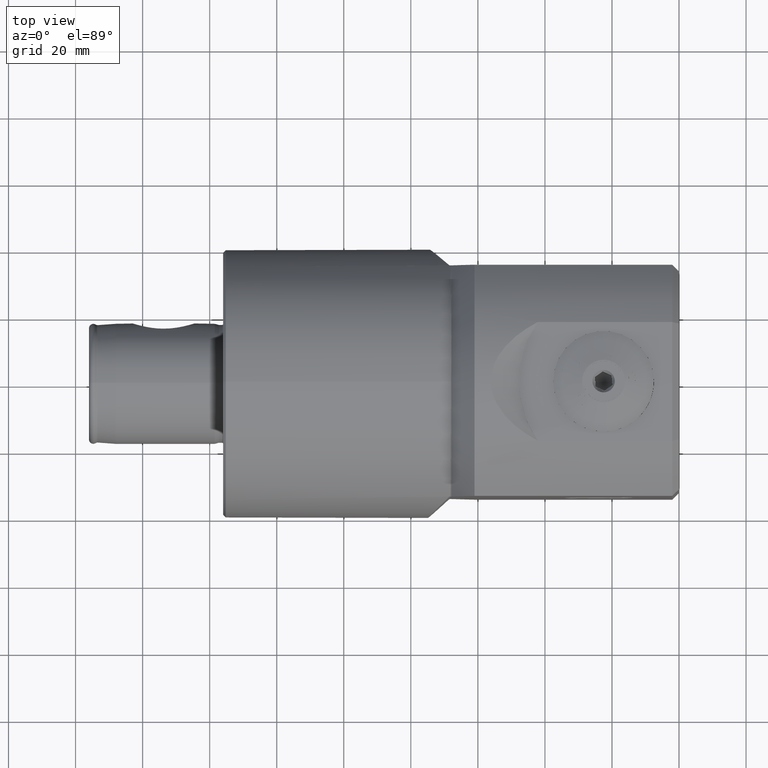
[diagram: clean part render]
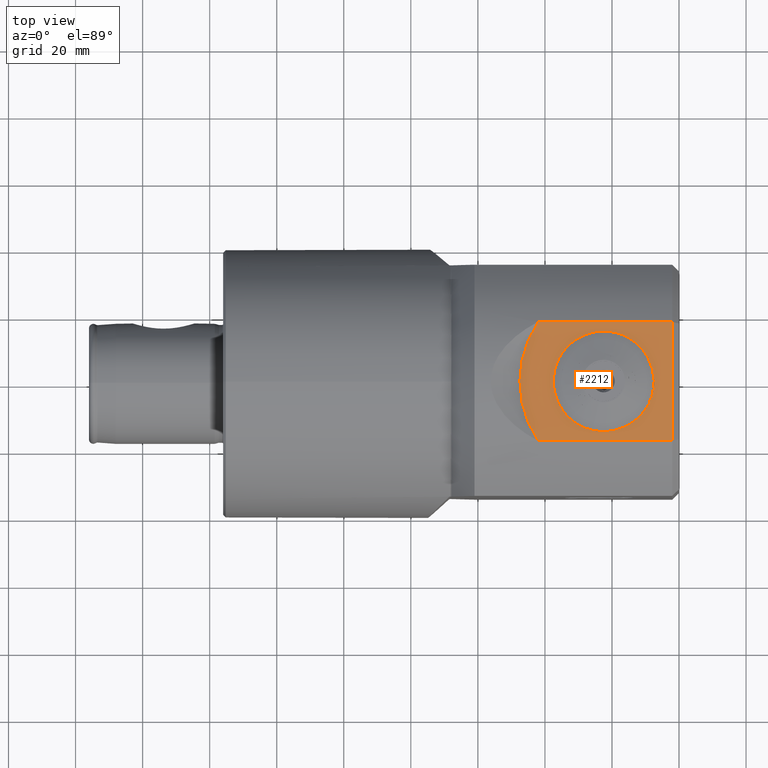
[diagram: same view with one face highlighted and labeled with its STEP entity id]
A machine part, top view. The second image highlights one B-rep face of the part: STEP entity #2212.
In plain terms, the highlighted planar face has unit normal (0, 0, 1).
Its self-contained STEP definition (entity closure, byte-faithful):
#305 = EDGE_CURVE ( 'NONE', #22587, #29649, #29413, .T. ) ;
#394 = EDGE_CURVE ( 'NONE', #26597, #20790, #8231, .T. ) ;
#720 = VERTEX_POINT ( 'NONE', #30414 ) ;
#763 = LINE ( 'NONE', #25496, #28697 ) ;
#908 = CARTESIAN_POINT ( 'NONE',  ( 142.6581592291711300, -17.67477015409244200, 43.55000000000000400 ) ) ;
#1601 = EDGE_CURVE ( 'NONE', #3423, #7683, #2275, .T. ) ;
#1687 = CARTESIAN_POINT ( 'NONE',  ( -22.49999999999999300, 0.0000000000000000000, 43.55000000000000400 ) ) ;
#1693 = ORIENTED_EDGE ( 'NONE', *, *, #4517, .T. ) ;
#1792 = ORIENTED_EDGE ( 'NONE', *, *, #23432, .F. ) ;
#2016 = DIRECTION ( 'NONE',  ( 0.0000000000000000000, 1.000000000000000000, 0.0000000000000000000 ) ) ;
#2131 = CIRCLE ( 'NONE', #28269, 15.00000000000000700 ) ;
#2212 = ADVANCED_FACE ( 'NONE', ( #25488, #18292 ), #14234, .T. ) ;
#2264 = DIRECTION ( 'NONE',  ( 0.9886517447379136200, -0.1502255891207595100, 0.0000000000000000000 ) ) ;
#2275 = LINE ( 'NONE', #7432, #22141 ) ;
#2525 = LINE ( 'NONE', #7548, #16064 ) ;
#2622 = CARTESIAN_POINT ( 'NONE',  ( -2.499999999999988500, 0.1499999999999917200, 43.55000000000000400 ) ) ;
#2681 = ORIENTED_EDGE ( 'NONE', *, *, #22047, .F. ) ;
#2829 = DIRECTION ( 'NONE',  ( -0.0000000000000000000, -0.0000000000000000000, 1.000000000000000000 ) ) ;
#2965 = CARTESIAN_POINT ( 'NONE',  ( -22.49999999999999300, 0.0000000000000000000, 43.55000000000000400 ) ) ;
#3423 = VERTEX_POINT ( 'NONE', #16714 ) ;
#3443 = VECTOR ( 'NONE', #31022, 1000.000000000000100 ) ;
#3808 = EDGE_CURVE ( 'NONE', #7058, #28088, #2131, .T. ) ;
#3922 = VECTOR ( 'NONE', #17126, 1000.000000000000000 ) ;
#4040 = DIRECTION ( 'NONE',  ( 0.5672689491267584000, 0.8235325976284260100, 0.0000000000000000000 ) ) ;
#4157 = EDGE_CURVE ( 'NONE', #23401, #18422, #19046, .T. ) ;
#4186 = DIRECTION ( 'NONE',  ( 0.0000000000000000000, 0.0000000000000000000, -1.000000000000000000 ) ) ;
#4241 = CIRCLE ( 'NONE', #23750, 15.00000000000000700 ) ;
#4306 = EDGE_CURVE ( 'NONE', #20790, #5189, #16087, .T. ) ;
#4329 = CARTESIAN_POINT ( 'NONE',  ( -11.66869939470759100, -10.37703845987825200, 43.54999999998301500 ) ) ;
#4351 = ORIENTED_EDGE ( 'NONE', *, *, #8948, .T. ) ;
#4517 = EDGE_CURVE ( 'NONE', #29318, #30352, #17757, .T. ) ;
#4980 = CARTESIAN_POINT ( 'NONE',  ( -22.49999999999999300, 0.0000000000000000000, 43.55000000000000400 ) ) ;
#5041 = ORIENTED_EDGE ( 'NONE', *, *, #17132, .T. ) ;
#5189 = VERTEX_POINT ( 'NONE', #27160 ) ;
#5314 = EDGE_CURVE ( 'NONE', #22587, #11885, #27420, .T. ) ;
#5366 = VERTEX_POINT ( 'NONE', #9632 ) ;
#5443 = LINE ( 'NONE', #30837, #25697 ) ;
#5670 = CARTESIAN_POINT ( 'NONE',  ( -10.23271904283285000, -8.632138664196979500, 43.54999999998301500 ) ) ;
#5752 = LINE ( 'NONE', #33263, #17996 ) ;
#6203 = EDGE_CURVE ( 'NONE', #7683, #33539, #763, .T. ) ;
#6703 = AXIS2_PLACEMENT_3D ( 'NONE', #2965, #26954, #8171 ) ;
#6819 = DIRECTION ( 'NONE',  ( -0.8994052515663691900, 0.4371157666509366500, 1.734398268171128800E-015 ) ) ;
#7058 = VERTEX_POINT ( 'NONE', #14977 ) ;
#7339 = CARTESIAN_POINT ( 'NONE',  ( -11.66869939470759100, -10.37703845987825000, 43.54999999998301500 ) ) ;
#7432 = CARTESIAN_POINT ( 'NONE',  ( -5.476867585236632900, -8.440110354102730000, 43.54999999998300800 ) ) ;
#7548 = CARTESIAN_POINT ( 'NONE',  ( -7.817945385682506300, -13.58159682446063200, 43.54999999998300800 ) ) ;
#7683 = VERTEX_POINT ( 'NONE', #22508 ) ;
#7690 = LINE ( 'NONE', #4329, #3443 ) ;
#7701 = CIRCLE ( 'NONE', #6703, 15.00000000000000700 ) ;
#8003 = EDGE_CURVE ( 'NONE', #34977, #19450, #15394, .T. ) ;
#8039 = ORIENTED_EDGE ( 'NONE', *, *, #394, .F. ) ;
#8062 = DIRECTION ( 'NONE',  ( 0.0000000000000000000, 0.0000000000000000000, -1.000000000000000000 ) ) ;
#8110 = ORIENTED_EDGE ( 'NONE', *, *, #12673, .F. ) ;
#8171 = DIRECTION ( 'NONE',  ( 1.000000000000000000, 0.0000000000000000000, 0.0000000000000000000 ) ) ;
#8231 = LINE ( 'NONE', #32038, #33206 ) ;
#8375 = CARTESIAN_POINT ( 'NONE',  ( -22.49999999999999300, 0.0000000000000000000, 43.55000000000000400 ) ) ;
#8399 = VERTEX_POINT ( 'NONE', #2622 ) ;
#8650 = DIRECTION ( 'NONE',  ( -0.9886517447379136200, 0.1502255891207592000, 0.0000000000000000000 ) ) ;
#8948 = EDGE_CURVE ( 'NONE', #27157, #11885, #12305, .T. ) ;
#8982 = CARTESIAN_POINT ( 'NONE',  ( -2.499999999999988500, -0.1500000000000082100, 43.55000000000000400 ) ) ;
#9189 = LINE ( 'NONE', #33012, #15563 ) ;
#9311 = CARTESIAN_POINT ( 'NONE',  ( -8.222304232350055000, -4.598630618611550400, 43.54999999998300800 ) ) ;
#9343 = CARTESIAN_POINT ( 'NONE',  ( -2.499999999999988500, -0.1500000000000082100, 43.54999999998300800 ) ) ;
#9575 = ORIENTED_EDGE ( 'NONE', *, *, #16025, .F. ) ;
#9632 = CARTESIAN_POINT ( 'NONE',  ( -37.50000000000000000, 1.836970198721031600E-015, 43.55000000000000400 ) ) ;
#9749 = CARTESIAN_POINT ( 'NONE',  ( -41.99632923973717200, -17.67477015409242500, 43.55000000000001100 ) ) ;
#10087 = VECTOR ( 'NONE', #25250, 1000.000000000000000 ) ;
#10258 = DIRECTION ( 'NONE',  ( -0.7289686274214104400, 0.6845471059286898400, 1.387570639981796500E-015 ) ) ;
#10572 = VECTOR ( 'NONE', #12980, 1000.000000000000100 ) ;
#10574 = ORIENTED_EDGE ( 'NONE', *, *, #29428, .F. ) ;
#10938 = ORIENTED_EDGE ( 'NONE', *, *, #19549, .F. ) ;
#10966 = CARTESIAN_POINT ( 'NONE',  ( -8.944028432310165800, -6.421497867007770000, 43.55000000000000400 ) ) ;
#11466 = CARTESIAN_POINT ( 'NONE',  ( 142.6581592291711300, 17.67477015409244200, 43.55000000000000400 ) ) ;
#11652 = CARTESIAN_POINT ( 'NONE',  ( -10.23271904283285000, -8.632138664196974200, 43.54999999998300800 ) ) ;
#11885 = VERTEX_POINT ( 'NONE', #9749 ) ;
#12265 = ORIENTED_EDGE ( 'NONE', *, *, #19158, .F. ) ;
#12287 = EDGE_CURVE ( 'NONE', #7058, #17570, #5443, .T. ) ;
#12305 = CIRCLE ( 'NONE', #25893, 31.34484872364306400 ) ;
#12333 = ORIENTED_EDGE ( 'NONE', *, *, #24657, .F. ) ;
#12423 = VECTOR ( 'NONE', #4040, 1000.000000000000200 ) ;
#12493 = CARTESIAN_POINT ( 'NONE',  ( -8.023309517461122200, -13.80028741268705900, 43.54999999998300800 ) ) ;
#12512 = LINE ( 'NONE', #9343, #32366 ) ;
#12585 = CARTESIAN_POINT ( 'NONE',  ( -7.648431497909863100, -2.104973403091988400, 43.55000000000000400 ) ) ;
#12612 = ORIENTED_EDGE ( 'NONE', *, *, #15692, .F. ) ;
#12673 = EDGE_CURVE ( 'NONE', #31919, #20885, #16824, .T. ) ;
#12904 = AXIS2_PLACEMENT_3D ( 'NONE', #33066, #19425, #16748 ) ;
#12980 = DIRECTION ( 'NONE',  ( 0.1502255891208206200, 0.9886517447379042900, 0.0000000000000000000 ) ) ;
#13367 = EDGE_CURVE ( 'NONE', #5366, #29049, #18886, .T. ) ;
#13647 = ORIENTED_EDGE ( 'NONE', *, *, #8003, .F. ) ;
#13989 = LINE ( 'NONE', #27569, #29225 ) ;
#14053 = CIRCLE ( 'NONE', #25433, 15.00000000000000700 ) ;
#14234 = PLANE ( 'NONE',  #14455 ) ;
#14264 = EDGE_LOOP ( 'NONE', ( #31267, #32120, #30881, #4351 ) ) ;
#14455 = AXIS2_PLACEMENT_3D ( 'NONE', #30540, #27347, #32808 ) ;
#14832 = CARTESIAN_POINT ( 'NONE',  ( -7.500750018750918200, 0.1500000000000023500, 43.55000000000000400 ) ) ;
#14977 = CARTESIAN_POINT ( 'NONE',  ( -7.500750018750945700, -0.1499999999999999700, 43.54999999998300800 ) ) ;
#15050 = ORIENTED_EDGE ( 'NONE', *, *, #19282, .F. ) ;
#15154 = ORIENTED_EDGE ( 'NONE', *, *, #12287, .F. ) ;
#15215 = DIRECTION ( 'NONE',  ( 0.6845471059286991600, 0.7289686274214016700, 0.0000000000000000000 ) ) ;
#15284 = DIRECTION ( 'NONE',  ( 1.000000000000000000, 0.0000000000000000000, 0.0000000000000000000 ) ) ;
#15394 = LINE ( 'NONE', #25404, #22492 ) ;
#15557 = CARTESIAN_POINT ( 'NONE',  ( -8.023309517461122200, -13.80028741268705900, 43.55000000000000400 ) ) ;
#15563 = VECTOR ( 'NONE', #25193, 1000.000000000000000 ) ;
#15577 = CARTESIAN_POINT ( 'NONE',  ( -3.738150688347749600, -3.002583955005109200, 43.55000000000000400 ) ) ;
#15692 = EDGE_CURVE ( 'NONE', #19450, #720, #19566, .T. ) ;
#15740 = ORIENTED_EDGE ( 'NONE', *, *, #4306, .F. ) ;
#15967 = ORIENTED_EDGE ( 'NONE', *, *, #3808, .T. ) ;
#16025 = EDGE_CURVE ( 'NONE', #25748, #16148, #22153, .T. ) ;
#16064 = VECTOR ( 'NONE', #10258, 1000.000000000000000 ) ;
#16087 = LINE ( 'NONE', #18286, #10572 ) ;
#16148 = VERTEX_POINT ( 'NONE', #21374 ) ;
#16278 = CARTESIAN_POINT ( 'NONE',  ( -7.817945385682506300, -13.58159682446063200, 43.55000000000000400 ) ) ;
#16318 = CARTESIAN_POINT ( 'NONE',  ( -4.402129887050340300, -5.787019731675686200, 43.55000000000000400 ) ) ;
#16320 = DIRECTION ( 'NONE',  ( 1.000000000000000000, 0.0000000000000000000, 0.0000000000000000000 ) ) ;
#16658 = DIRECTION ( 'NONE',  ( 0.8235325976284272300, -0.5672689491267567400, -1.734398268171123100E-015 ) ) ;
#16714 = CARTESIAN_POINT ( 'NONE',  ( -5.476867585236632900, -8.440110354102730000, 43.55000000000000400 ) ) ;
#16748 = DIRECTION ( 'NONE',  ( 1.000000000000000000, 0.0000000000000000000, 0.0000000000000000000 ) ) ;
#16824 = LINE ( 'NONE', #12493, #20592 ) ;
#17126 = DIRECTION ( 'NONE',  ( -0.9548645447466420600, 0.2970415815770376900, 0.0000000000000000000 ) ) ;
#17132 = EDGE_CURVE ( 'NONE', #26597, #19717, #14053, .T. ) ;
#17368 = CARTESIAN_POINT ( 'NONE',  ( -6.937970987428903900, -10.90163992305268100, 43.54999999998300800 ) ) ;
#17570 = VERTEX_POINT ( 'NONE', #8982 ) ;
#17584 = VECTOR ( 'NONE', #31921, 1000.000000000000100 ) ;
#17612 = CARTESIAN_POINT ( 'NONE',  ( -2.000000000000001800, 17.67477015409244200, 43.55000000000000400 ) ) ;
#17737 = DIRECTION ( 'NONE',  ( 0.0000000000000000000, 1.000000000000000000, 0.0000000000000000000 ) ) ;
#17757 = CIRCLE ( 'NONE', #12904, 15.00000000000000700 ) ;
#17833 = DIRECTION ( 'NONE',  ( 1.000000000000000000, 0.0000000000000000000, 0.0000000000000000000 ) ) ;
#17872 = VECTOR ( 'NONE', #30604, 1000.000000000000000 ) ;
#17996 = VECTOR ( 'NONE', #32917, 1000.000000000000100 ) ;
#18286 = CARTESIAN_POINT ( 'NONE',  ( -3.738150688347749600, -3.002583955005109200, 43.54999999998300800 ) ) ;
#18292 = FACE_BOUND ( 'NONE', #24848, .T. ) ;
#18328 = ORIENTED_EDGE ( 'NONE', *, *, #6203, .F. ) ;
#18387 = VECTOR ( 'NONE', #2016, 1000.000000000000000 ) ;
#18422 = VERTEX_POINT ( 'NONE', #26441 ) ;
#18496 = DIRECTION ( 'NONE',  ( 1.000000000000000000, 0.0000000000000000000, 0.0000000000000000000 ) ) ;
#18706 = CARTESIAN_POINT ( 'NONE',  ( -9.075163162305443600, -6.691319442477674100, 43.54999999998300800 ) ) ;
#18886 = CIRCLE ( 'NONE', #28276, 15.00000000000000700 ) ;
#18928 = DIRECTION ( 'NONE',  ( 0.2970415815771467200, 0.9548645447466080900, 0.0000000000000000000 ) ) ;
#19046 = CIRCLE ( 'NONE', #26936, 15.00000000000000700 ) ;
#19137 = CARTESIAN_POINT ( 'NONE',  ( -41.99632923973717200, 17.67477015409242500, 43.55000000000001100 ) ) ;
#19158 = EDGE_CURVE ( 'NONE', #17570, #8399, #12512, .T. ) ;
#19282 = EDGE_CURVE ( 'NONE', #29318, #3423, #31539, .T. ) ;
#19425 = DIRECTION ( 'NONE',  ( 0.0000000000000000000, 0.0000000000000000000, -1.000000000000000000 ) ) ;
#19450 = VERTEX_POINT ( 'NONE', #16318 ) ;
#19549 = EDGE_CURVE ( 'NONE', #23401, #25748, #27300, .T. ) ;
#19566 = LINE ( 'NONE', #24605, #34465 ) ;
#19717 = VERTEX_POINT ( 'NONE', #33446 ) ;
#20485 = VECTOR ( 'NONE', #16658, 1000.000000000000100 ) ;
#20592 = VECTOR ( 'NONE', #15215, 1000.000000000000000 ) ;
#20790 = VERTEX_POINT ( 'NONE', #15577 ) ;
#20885 = VERTEX_POINT ( 'NONE', #16278 ) ;
#21066 = CARTESIAN_POINT ( 'NONE',  ( -7.693499174646095900, -2.401568926513357300, 43.54999999998300800 ) ) ;
#21374 = CARTESIAN_POINT ( 'NONE',  ( -6.767790302690881900, -10.65458014376415900, 43.55000000000000400 ) ) ;
#22047 = EDGE_CURVE ( 'NONE', #720, #19717, #30961, .T. ) ;
#22050 = EDGE_CURVE ( 'NONE', #27157, #29649, #32275, .T. ) ;
#22141 = VECTOR ( 'NONE', #29176, 1000.000000000000100 ) ;
#22153 = LINE ( 'NONE', #17368, #12423 ) ;
#22492 = VECTOR ( 'NONE', #33686, 1000.000000000000000 ) ;
#22508 = CARTESIAN_POINT ( 'NONE',  ( -5.345732855241328400, -8.170288778632832200, 43.55000000000000400 ) ) ;
#22587 = VERTEX_POINT ( 'NONE', #30561 ) ;
#23101 = ORIENTED_EDGE ( 'NONE', *, *, #13367, .T. ) ;
#23311 = ORIENTED_EDGE ( 'NONE', *, *, #29938, .T. ) ;
#23401 = VERTEX_POINT ( 'NONE', #11652 ) ;
#23432 = EDGE_CURVE ( 'NONE', #31340, #31919, #7690, .T. ) ;
#23750 = AXIS2_PLACEMENT_3D ( 'NONE', #8375, #32520, #16320 ) ;
#24465 = CARTESIAN_POINT ( 'NONE',  ( -6.937970987428903900, -10.90163992305268100, 43.55000000000000400 ) ) ;
#24471 = ORIENTED_EDGE ( 'NONE', *, *, #32478, .F. ) ;
#24605 = CARTESIAN_POINT ( 'NONE',  ( -4.402129887050340300, -5.787019731675687100, 43.54999999998300800 ) ) ;
#24657 = EDGE_CURVE ( 'NONE', #20885, #18422, #2525, .T. ) ;
#24848 = EDGE_LOOP ( 'NONE', ( #8110, #1792, #33949, #23101, #24471, #12265, #15154, #15967, #10574, #15740, #8039, #5041, #2681, #12612, #13647, #23311, #18328, #26880, #15050, #1693, #34737, #9575, #10938, #27091, #12333 ) ) ;
#25193 = DIRECTION ( 'NONE',  ( -1.000000000000000000, 1.647740134978383600E-015, 0.0000000000000000000 ) ) ;
#25250 = DIRECTION ( 'NONE',  ( -1.000000000000000000, 0.0000000000000000000, 0.0000000000000000000 ) ) ;
#25404 = CARTESIAN_POINT ( 'NONE',  ( -8.222304232350069200, -4.598630618611551300, 43.54999999998300800 ) ) ;
#25433 = AXIS2_PLACEMENT_3D ( 'NONE', #1687, #4186, #15284 ) ;
#25488 = FACE_OUTER_BOUND ( 'NONE', #14264, .T. ) ;
#25496 = CARTESIAN_POINT ( 'NONE',  ( -5.345732855241328400, -8.170288778632832200, 43.54999999998300800 ) ) ;
#25697 = VECTOR ( 'NONE', #30506, 1000.000000000000000 ) ;
#25748 = VERTEX_POINT ( 'NONE', #24465 ) ;
#25893 = AXIS2_PLACEMENT_3D ( 'NONE', #29790, #2829, #30008 ) ;
#26441 = CARTESIAN_POINT ( 'NONE',  ( -11.46333526292897500, -10.15834787165183300, 43.55000000000000400 ) ) ;
#26597 = VERTEX_POINT ( 'NONE', #21066 ) ;
#26880 = ORIENTED_EDGE ( 'NONE', *, *, #1601, .F. ) ;
#26936 = AXIS2_PLACEMENT_3D ( 'NONE', #33916, #28470, #17833 ) ;
#26954 = DIRECTION ( 'NONE',  ( 0.0000000000000000000, 0.0000000000000000000, -1.000000000000000000 ) ) ;
#27091 = ORIENTED_EDGE ( 'NONE', *, *, #4157, .T. ) ;
#27157 = VERTEX_POINT ( 'NONE', #19137 ) ;
#27160 = CARTESIAN_POINT ( 'NONE',  ( -3.693083011611503400, -2.705988431583737700, 43.55000000000000400 ) ) ;
#27300 = LINE ( 'NONE', #5670, #20485 ) ;
#27347 = DIRECTION ( 'NONE',  ( 0.0000000000000000000, -0.0000000000000000000, 1.000000000000000000 ) ) ;
#27420 = LINE ( 'NONE', #908, #10087 ) ;
#27569 = CARTESIAN_POINT ( 'NONE',  ( -3.693083011611503400, -2.705988431583737700, 43.54999999998300800 ) ) ;
#28088 = VERTEX_POINT ( 'NONE', #12585 ) ;
#28145 = EDGE_CURVE ( 'NONE', #31340, #5366, #7701, .T. ) ;
#28269 = AXIS2_PLACEMENT_3D ( 'NONE', #4980, #8062, #34797 ) ;
#28276 = AXIS2_PLACEMENT_3D ( 'NONE', #31990, #31757, #18496 ) ;
#28470 = DIRECTION ( 'NONE',  ( 0.0000000000000000000, 0.0000000000000000000, -1.000000000000000000 ) ) ;
#28697 = VECTOR ( 'NONE', #6819, 1000.000000000000100 ) ;
#28860 = CARTESIAN_POINT ( 'NONE',  ( -9.075163162305443600, -6.691319442477677600, 43.54999999998301500 ) ) ;
#29049 = VERTEX_POINT ( 'NONE', #14832 ) ;
#29176 = DIRECTION ( 'NONE',  ( 0.4371157666510197500, 0.8994052515663287800, 0.0000000000000000000 ) ) ;
#29212 = CARTESIAN_POINT ( 'NONE',  ( -2.000000000000001800, 0.0000000000000000000, 43.55000000000000400 ) ) ;
#29225 = VECTOR ( 'NONE', #8650, 1000.000000000000200 ) ;
#29318 = VERTEX_POINT ( 'NONE', #18706 ) ;
#29413 = LINE ( 'NONE', #29212, #18387 ) ;
#29428 = EDGE_CURVE ( 'NONE', #5189, #28088, #13989, .T. ) ;
#29649 = VERTEX_POINT ( 'NONE', #17612 ) ;
#29790 = CARTESIAN_POINT ( 'NONE',  ( -16.10999999999999900, 0.0000000000000000000, 43.55000000000001100 ) ) ;
#29938 = EDGE_CURVE ( 'NONE', #34977, #33539, #4241, .T. ) ;
#30008 = DIRECTION ( 'NONE',  ( 1.000000000000000000, 0.0000000000000000000, 0.0000000000000000000 ) ) ;
#30352 = VERTEX_POINT ( 'NONE', #34515 ) ;
#30370 = CARTESIAN_POINT ( 'NONE',  ( -4.313017412577196700, -5.500560368251705700, 43.54999999998300800 ) ) ;
#30414 = CARTESIAN_POINT ( 'NONE',  ( -4.313017412577196700, -5.500560368251704800, 43.55000000000000400 ) ) ;
#30506 = DIRECTION ( 'NONE',  ( 1.000000000000000000, -1.647740134978378900E-015, 0.0000000000000000000 ) ) ;
#30540 = CARTESIAN_POINT ( 'NONE',  ( -16.10999999999999900, 0.0000000000000000000, 43.55000000000000400 ) ) ;
#30561 = CARTESIAN_POINT ( 'NONE',  ( -2.000000000000001800, -17.67477015409245300, 43.55000000000000400 ) ) ;
#30604 = DIRECTION ( 'NONE',  ( 1.000000000000000000, -0.0000000000000000000, -0.0000000000000000000 ) ) ;
#30837 = CARTESIAN_POINT ( 'NONE',  ( -7.500750018750945700, -0.1499999999999999700, 43.54999999998300800 ) ) ;
#30881 = ORIENTED_EDGE ( 'NONE', *, *, #22050, .F. ) ;
#30961 = LINE ( 'NONE', #30370, #3922 ) ;
#31022 = DIRECTION ( 'NONE',  ( 0.7289686274214096700, -0.6845471059286905000, -1.387570639981794700E-015 ) ) ;
#31267 = ORIENTED_EDGE ( 'NONE', *, *, #5314, .F. ) ;
#31340 = VERTEX_POINT ( 'NONE', #7339 ) ;
#31539 = LINE ( 'NONE', #28860, #17584 ) ;
#31757 = DIRECTION ( 'NONE',  ( 0.0000000000000000000, 0.0000000000000000000, -1.000000000000000000 ) ) ;
#31919 = VERTEX_POINT ( 'NONE', #15557 ) ;
#31921 = DIRECTION ( 'NONE',  ( 0.8994052515663689700, -0.4371157666509372700, -1.734398268171141800E-015 ) ) ;
#31990 = CARTESIAN_POINT ( 'NONE',  ( -22.49999999999999300, 0.0000000000000000000, 43.55000000000000400 ) ) ;
#32038 = CARTESIAN_POINT ( 'NONE',  ( -7.693499174646095900, -2.401568926513361300, 43.54999999998300800 ) ) ;
#32120 = ORIENTED_EDGE ( 'NONE', *, *, #305, .T. ) ;
#32275 = LINE ( 'NONE', #11466, #17872 ) ;
#32366 = VECTOR ( 'NONE', #17737, 1000.000000000000000 ) ;
#32478 = EDGE_CURVE ( 'NONE', #8399, #29049, #9189, .T. ) ;
#32520 = DIRECTION ( 'NONE',  ( 0.0000000000000000000, 0.0000000000000000000, -1.000000000000000000 ) ) ;
#32808 = DIRECTION ( 'NONE',  ( 1.000000000000000000, 0.0000000000000000000, 0.0000000000000000000 ) ) ;
#32917 = DIRECTION ( 'NONE',  ( -0.8235325976284269000, 0.5672689491267572900, 1.734398268171122300E-015 ) ) ;
#33012 = CARTESIAN_POINT ( 'NONE',  ( -2.499999999999988500, 0.1499999999999917200, 43.54999999998300800 ) ) ;
#33066 = CARTESIAN_POINT ( 'NONE',  ( -22.49999999999999300, 0.0000000000000000000, 43.55000000000000400 ) ) ;
#33206 = VECTOR ( 'NONE', #2264, 1000.000000000000000 ) ;
#33263 = CARTESIAN_POINT ( 'NONE',  ( -6.767790302690881900, -10.65458014376416100, 43.54999999998300800 ) ) ;
#33446 = CARTESIAN_POINT ( 'NONE',  ( -8.133191757876954100, -4.312171255187555700, 43.55000000000000400 ) ) ;
#33539 = VERTEX_POINT ( 'NONE', #10966 ) ;
#33686 = DIRECTION ( 'NONE',  ( 0.9548645447466424000, -0.2970415815770367500, 0.0000000000000000000 ) ) ;
#33916 = CARTESIAN_POINT ( 'NONE',  ( -22.49999999999999300, 0.0000000000000000000, 43.55000000000000400 ) ) ;
#33949 = ORIENTED_EDGE ( 'NONE', *, *, #28145, .T. ) ;
#34301 = EDGE_CURVE ( 'NONE', #16148, #30352, #5752, .T. ) ;
#34465 = VECTOR ( 'NONE', #18928, 1000.000000000000100 ) ;
#34515 = CARTESIAN_POINT ( 'NONE',  ( -10.06253835809482700, -8.385078884908459400, 43.55000000000000400 ) ) ;
#34737 = ORIENTED_EDGE ( 'NONE', *, *, #34301, .F. ) ;
#34797 = DIRECTION ( 'NONE',  ( 1.000000000000000000, 0.0000000000000000000, 0.0000000000000000000 ) ) ;
#34977 = VERTEX_POINT ( 'NONE', #9311 ) ;